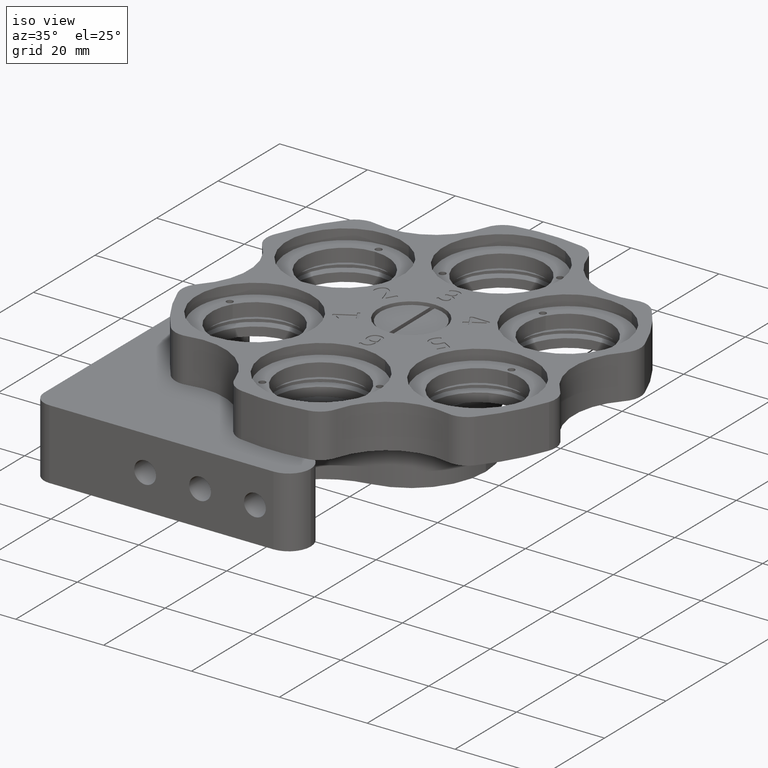
[diagram: clean part render]
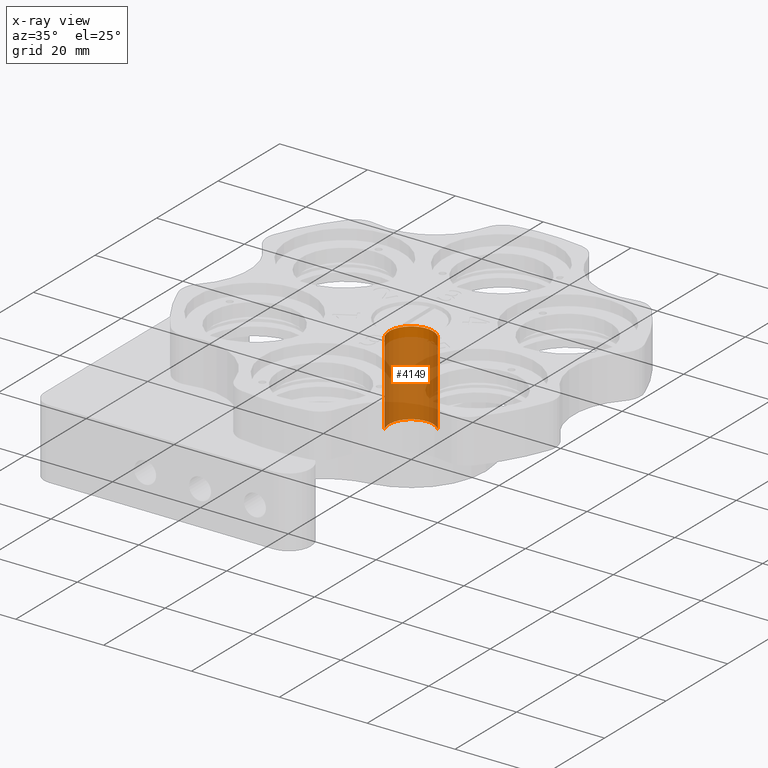
[diagram: x-ray — body ghosted, one internal face saturated and labeled with its STEP entity id]
A machine part, iso view, then the same camera in x-ray: the body is ghosted and one INTERNAL B-rep face — a face not visible from any outside direction — is saturated and labeled: STEP entity #4149.
In plain terms, the highlighted cylindrical surface (edge-blend (fillet) strip) has radius 5 mm, axis along (-0, -0, -1).
Its self-contained STEP definition (entity closure, byte-faithful):
#437 = DIRECTION ( 'NONE',  ( 0.7427010864063201500, 0.6696231001472929800, 0.0000000000000000000 ) ) ;
#620 = DIRECTION ( 'NONE',  ( -1.997606398647382200E-031, -1.224606353822375500E-016, -1.000000000000000000 ) ) ;
#788 = AXIS2_PLACEMENT_3D ( 'NONE', #1431, #2472, #1331 ) ;
#1287 = CARTESIAN_POINT ( 'NONE',  ( 3.713505432031958300, 3.348115500736116500, 6.999999999999999100 ) ) ;
#1331 = DIRECTION ( 'NONE',  ( -0.7427010864063201500, -0.6696231001472929800, 0.0000000000000000000 ) ) ;
#1431 = CARTESIAN_POINT ( 'NONE',  ( 3.561527595719349500E-013, -3.500235253705617900E-013, 6.999999999999999100 ) ) ;
#2472 = DIRECTION ( 'NONE',  ( -1.997606398647382200E-031, -1.224606353822375500E-016, -1.000000000000000000 ) ) ;
#3203 = VECTOR ( 'NONE', #620, 1000.000000000000000 ) ;
#3760 = VERTEX_POINT ( 'NONE', #8735 ) ;
#4060 = CARTESIAN_POINT ( 'NONE',  ( 3.561527595719350500E-013, -3.523625235063626000E-013, -12.10000000000000300 ) ) ;
#4149 = ADVANCED_FACE ( 'NONE', ( #11438 ), #8026, .T. ) ;
#4361 = CARTESIAN_POINT ( 'NONE',  ( 3.713505432031956500, 3.348115500736115200, -12.10000000000000300 ) ) ;
#4396 = CARTESIAN_POINT ( 'NONE',  ( -3.713505432031244600, -3.348115500736815500, 6.999999999999999100 ) ) ;
#4624 = DIRECTION ( 'NONE',  ( 1.997606398647382200E-031, 1.224606353822375500E-016, 1.000000000000000000 ) ) ;
#5088 = CIRCLE ( 'NONE', #10392, 5.000000000000000000 ) ;
#5340 = VERTEX_POINT ( 'NONE', #1287 ) ;
#5416 = EDGE_CURVE ( 'NONE', #10511, #3760, #5088, .T. ) ;
#5827 = LINE ( 'NONE', #9280, #15086 ) ;
#6077 = ORIENTED_EDGE ( 'NONE', *, *, #14540, .T. ) ;
#6611 = ORIENTED_EDGE ( 'NONE', *, *, #5416, .T. ) ;
#7547 = CIRCLE ( 'NONE', #12153, 5.000000000000000000 ) ;
#7560 = EDGE_CURVE ( 'NONE', #14273, #3760, #12839, .T. ) ;
#8026 = CYLINDRICAL_SURFACE ( 'NONE', #788, 5.000000000000000000 ) ;
#8356 = ORIENTED_EDGE ( 'NONE', *, *, #12320, .F. ) ;
#8735 = CARTESIAN_POINT ( 'NONE',  ( -3.713505432031246400, -3.348115500736817300, -12.10000000000000300 ) ) ;
#9280 = CARTESIAN_POINT ( 'NONE',  ( 3.713505432031956500, 3.348115500736116100, 6.999999999999999100 ) ) ;
#9851 = CARTESIAN_POINT ( 'NONE',  ( -3.713505432031245500, -3.348115500736816900, 6.999999999999999100 ) ) ;
#10068 = ORIENTED_EDGE ( 'NONE', *, *, #7560, .F. ) ;
#10392 = AXIS2_PLACEMENT_3D ( 'NONE', #4060, #12503, #437 ) ;
#10511 = VERTEX_POINT ( 'NONE', #4361 ) ;
#10633 = CARTESIAN_POINT ( 'NONE',  ( 3.561527595719349500E-013, -3.500235253705617900E-013, 6.999999999999999100 ) ) ;
#11438 = FACE_OUTER_BOUND ( 'NONE', #12310, .T. ) ;
#12153 = AXIS2_PLACEMENT_3D ( 'NONE', #10633, #4624, #13064 ) ;
#12310 = EDGE_LOOP ( 'NONE', ( #8356, #6077, #6611, #10068 ) ) ;
#12320 = EDGE_CURVE ( 'NONE', #5340, #14273, #7547, .T. ) ;
#12503 = DIRECTION ( 'NONE',  ( 1.997606398647382200E-031, 1.224606353822375500E-016, 1.000000000000000000 ) ) ;
#12763 = DIRECTION ( 'NONE',  ( -1.997606398647382200E-031, -1.224606353822375500E-016, -1.000000000000000000 ) ) ;
#12839 = LINE ( 'NONE', #4396, #3203 ) ;
#13064 = DIRECTION ( 'NONE',  ( 0.7427010864063201500, 0.6696231001472929800, 0.0000000000000000000 ) ) ;
#14273 = VERTEX_POINT ( 'NONE', #9851 ) ;
#14540 = EDGE_CURVE ( 'NONE', #5340, #10511, #5827, .T. ) ;
#15086 = VECTOR ( 'NONE', #12763, 1000.000000000000000 ) ;